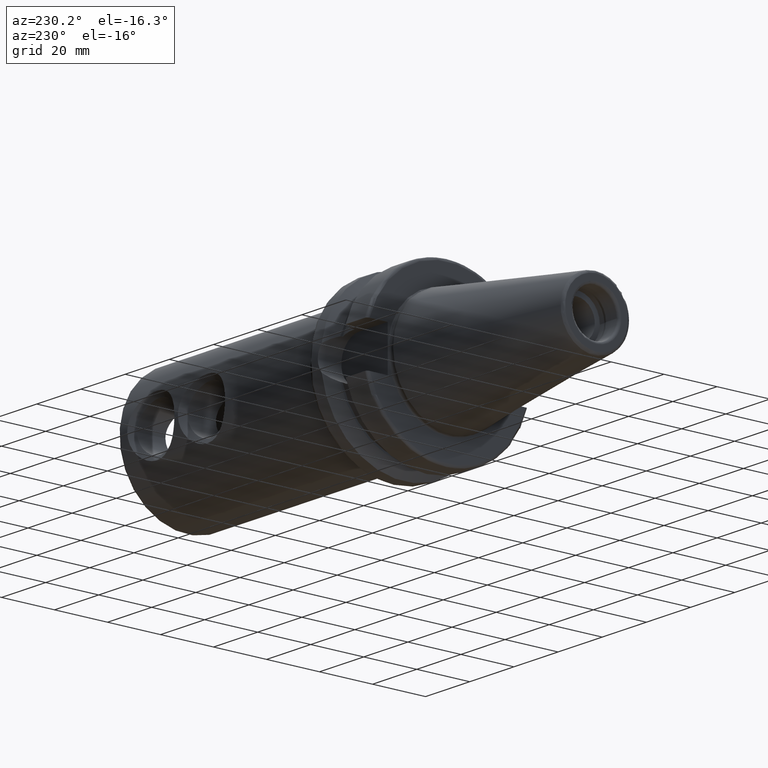
[diagram: clean part render]
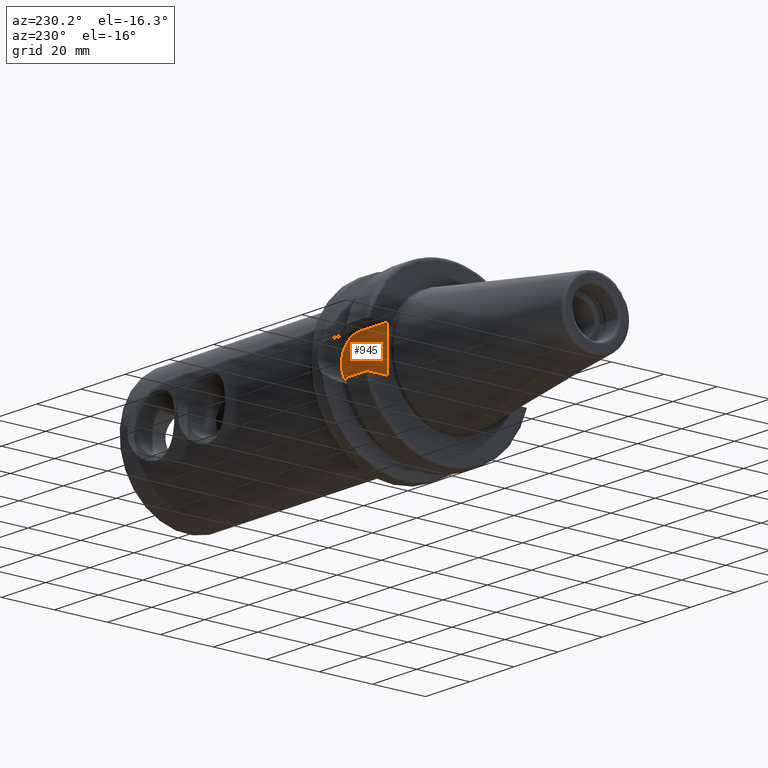
[diagram: same view with one face highlighted and labeled with its STEP entity id]
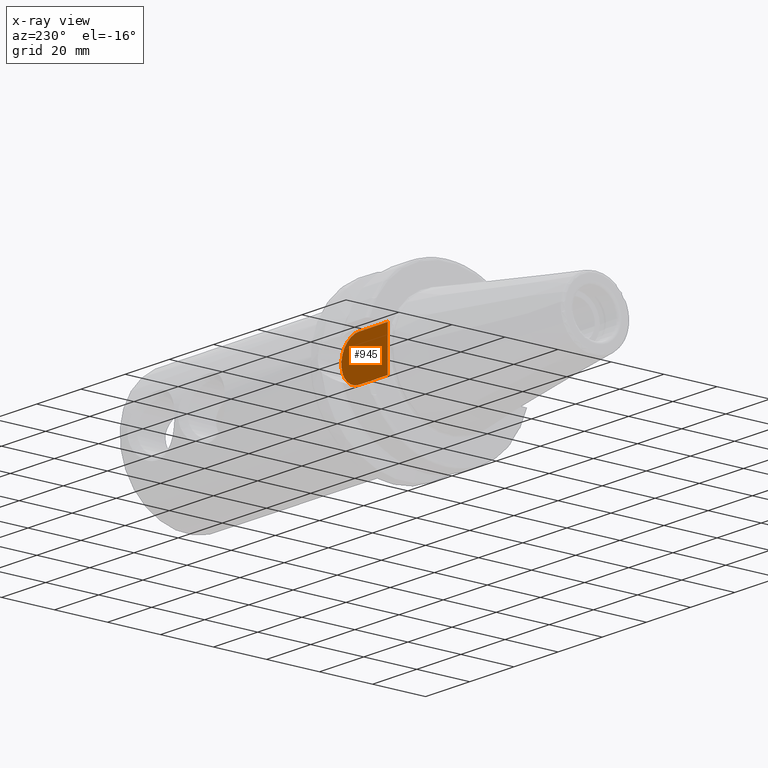
[diagram: x-ray of the same camera — body ghosted, the highlighted face saturated]
A machine part, auxiliary view. The second image highlights one B-rep face of the part: STEP entity #945.
The next image is the same camera in x-ray: the body ghosted, the highlighted face saturated — about 0% of this face is hidden behind the body in this view.
In plain terms, the highlighted planar face has unit normal (0, 1, 0).
Its self-contained STEP definition (entity closure, byte-faithful):
#90=LINE('',#2150,#139);
#95=LINE('',#2174,#144);
#96=LINE('',#2176,#145);
#139=VECTOR('',#1290,10.);
#144=VECTOR('',#1297,10.);
#145=VECTOR('',#1300,10.);
#191=PLANE('',#1062);
#232=FACE_OUTER_BOUND('',#296,.T.);
#296=EDGE_LOOP('',(#806,#807,#808,#809));
#359=CIRCLE('',#1059,8.05);
#451=VERTEX_POINT('',#2125);
#452=VERTEX_POINT('',#2127);
#457=VERTEX_POINT('',#2149);
#462=VERTEX_POINT('',#2172);
#572=EDGE_CURVE('',#452,#451,#359,.T.);
#578=EDGE_CURVE('',#457,#452,#90,.T.);
#585=EDGE_CURVE('',#451,#462,#95,.T.);
#586=EDGE_CURVE('',#457,#462,#96,.T.);
#806=ORIENTED_EDGE('',*,*,#585,.T.);
#807=ORIENTED_EDGE('',*,*,#586,.F.);
#808=ORIENTED_EDGE('',*,*,#578,.T.);
#809=ORIENTED_EDGE('',*,*,#572,.T.);
#945=ADVANCED_FACE('',(#232),#191,.T.);
#1059=AXIS2_PLACEMENT_3D('',#2128,#1283,#1284);
#1062=AXIS2_PLACEMENT_3D('',#2175,#1298,#1299);
#1283=DIRECTION('center_axis',(0.,1.,0.));
#1284=DIRECTION('ref_axis',(0.,0.,1.));
#1290=DIRECTION('',(1.,0.,8.57315076930623E-17));
#1297=DIRECTION('',(-1.,0.,-8.57315076930623E-17));
#1298=DIRECTION('center_axis',(0.,1.,0.));
#1299=DIRECTION('ref_axis',(0.,0.,1.));
#1300=DIRECTION('',(0.,0.,-1.));
#2125=CARTESIAN_POINT('',(14.95,22.6,-8.05));
#2127=CARTESIAN_POINT('',(14.95,22.6,8.05));
#2128=CARTESIAN_POINT('Origin',(14.95,22.6,0.));
#2149=CARTESIAN_POINT('',(1.99999999999999,22.6,8.05));
#2150=CARTESIAN_POINT('',(1.99999999999999,22.6,8.05));
#2172=CARTESIAN_POINT('',(1.99999999999999,22.6,-8.05));
#2174=CARTESIAN_POINT('',(14.95,22.6,-8.05));
#2175=CARTESIAN_POINT('Origin',(12.5,22.6,0.));
#2176=CARTESIAN_POINT('',(1.99999999999999,22.6,0.));